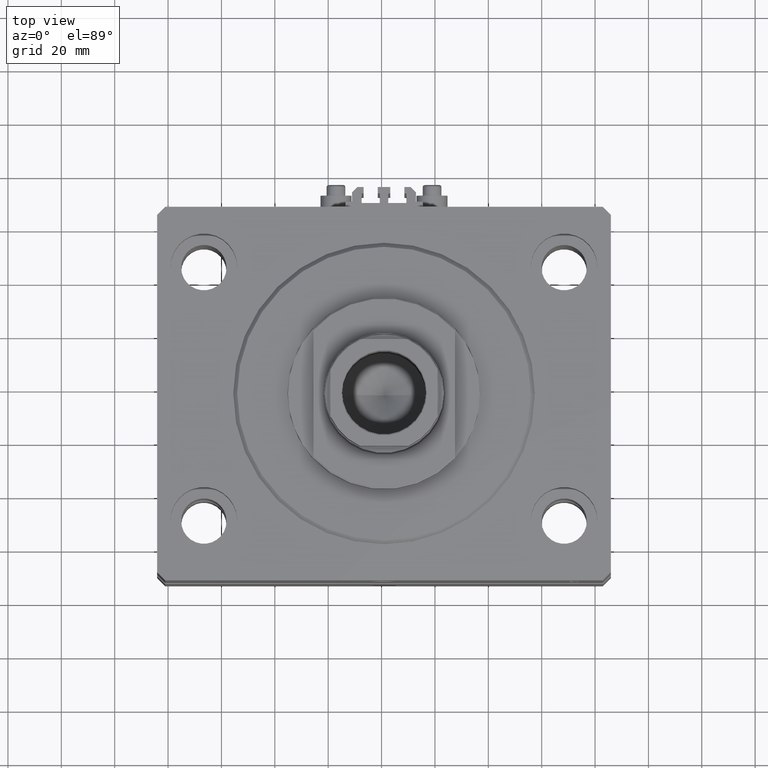
[diagram: clean part render]
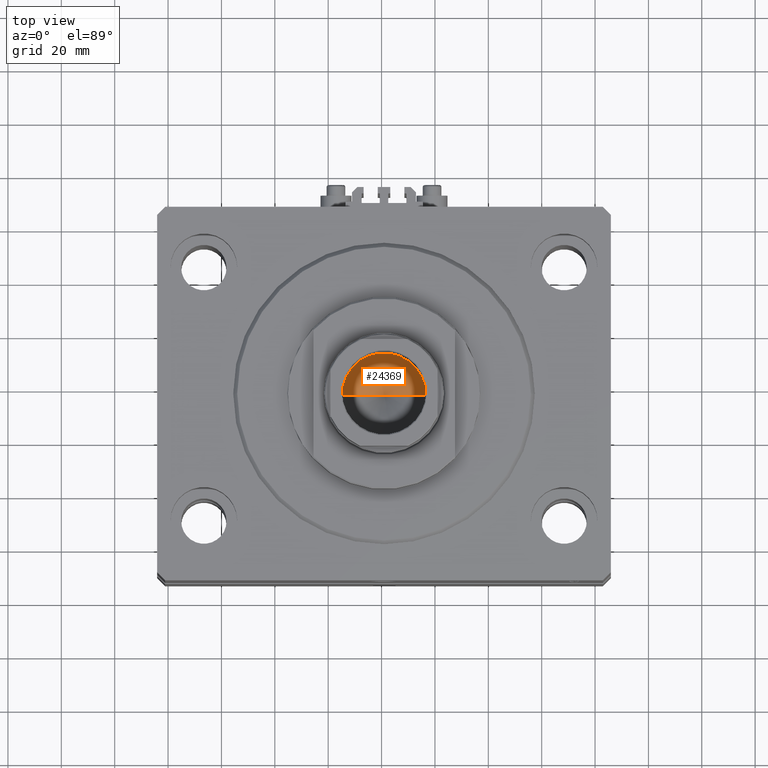
[diagram: same view with one face highlighted and labeled with its STEP entity id]
A machine part, top view. The second image highlights one B-rep face of the part: STEP entity #24369.
In plain terms, the highlighted conical surface has half-angle 59 deg.
Its self-contained STEP definition (entity closure, byte-faithful):
#1297 = VECTOR ( 'NONE', #8181, 1000.000000000000000 ) ;
#3948 = CARTESIAN_POINT ( 'NONE',  ( -15.74999999999998934, 1.928818708657080161E-15, 71.10000000000002274 ) ) ;
#4730 = EDGE_CURVE ( 'NONE', #7354, #19580, #25669, .T. ) ;
#4993 = DIRECTION ( 'NONE',  ( 1.000000000000000000, 0.000000000000000000, 0.000000000000000000 ) ) ;
#6933 = CONICAL_SURFACE ( 'NONE', #33540, 15.74999999999998934, 1.029744258676653645 ) ;
#7354 = VERTEX_POINT ( 'NONE', #27497 ) ;
#7379 = VECTOR ( 'NONE', #12123, 1000.000000000000000 ) ;
#7679 = EDGE_CURVE ( 'NONE', #7354, #19216, #41522, .T. ) ;
#8181 = DIRECTION ( 'NONE',  ( -0.8571673007021118895, 1.049727191138618079E-16, 0.5150380749100549327 ) ) ;
#11066 = EDGE_CURVE ( 'NONE', #19216, #19580, #37102, .T. ) ;
#11497 = DIRECTION ( 'NONE',  ( 1.000000000000000000, 0.000000000000000000, 0.000000000000000000 ) ) ;
#12123 = DIRECTION ( 'NONE',  ( 0.8571673007021118895, 0.000000000000000000, 0.5150380749100549327 ) ) ;
#12538 = ORIENTED_EDGE ( 'NONE', *, *, #7679, .T. ) ;
#12834 = DIRECTION ( 'NONE',  ( -0.000000000000000000, -0.000000000000000000, 1.000000000000000000 ) ) ;
#16028 = CARTESIAN_POINT ( 'NONE',  ( -15.74999999999998934, 1.928818708657080161E-15, 71.10000000000002274 ) ) ;
#16152 = ORIENTED_EDGE ( 'NONE', *, *, #4730, .F. ) ;
#17355 = EDGE_LOOP ( 'NONE', ( #16152, #12538, #29639 ) ) ;
#19216 = VERTEX_POINT ( 'NONE', #31178 ) ;
#19580 = VERTEX_POINT ( 'NONE', #3948 ) ;
#23503 = CARTESIAN_POINT ( 'NONE',  ( 0.000000000000000000, 0.000000000000000000, 71.10000000000002274 ) ) ;
#24369 = ADVANCED_FACE ( 'NONE', ( #42713 ), #6933, .F. ) ;
#25669 = LINE ( 'NONE', #16028, #1297 ) ;
#27052 = CARTESIAN_POINT ( 'NONE',  ( 0.000000000000000000, 0.000000000000000000, 71.10000000000002274 ) ) ;
#27497 = CARTESIAN_POINT ( 'NONE',  ( -1.480675244360640996E-14, 0.000000000000000000, 61.63644525031594412 ) ) ;
#29639 = ORIENTED_EDGE ( 'NONE', *, *, #11066, .T. ) ;
#31178 = CARTESIAN_POINT ( 'NONE',  ( 15.74999999999998934, 0.000000000000000000, 71.10000000000002274 ) ) ;
#33540 = AXIS2_PLACEMENT_3D ( 'NONE', #27052, #12834, #4993 ) ;
#37102 = CIRCLE ( 'NONE', #43360, 15.74999999999998934 ) ;
#38434 = DIRECTION ( 'NONE',  ( -0.000000000000000000, -0.000000000000000000, 1.000000000000000000 ) ) ;
#41522 = LINE ( 'NONE', #45920, #7379 ) ;
#42713 = FACE_OUTER_BOUND ( 'NONE', #17355, .T. ) ;
#43360 = AXIS2_PLACEMENT_3D ( 'NONE', #23503, #38434, #11497 ) ;
#45920 = CARTESIAN_POINT ( 'NONE',  ( 15.74999999999998934, 0.000000000000000000, 71.10000000000002274 ) ) ;